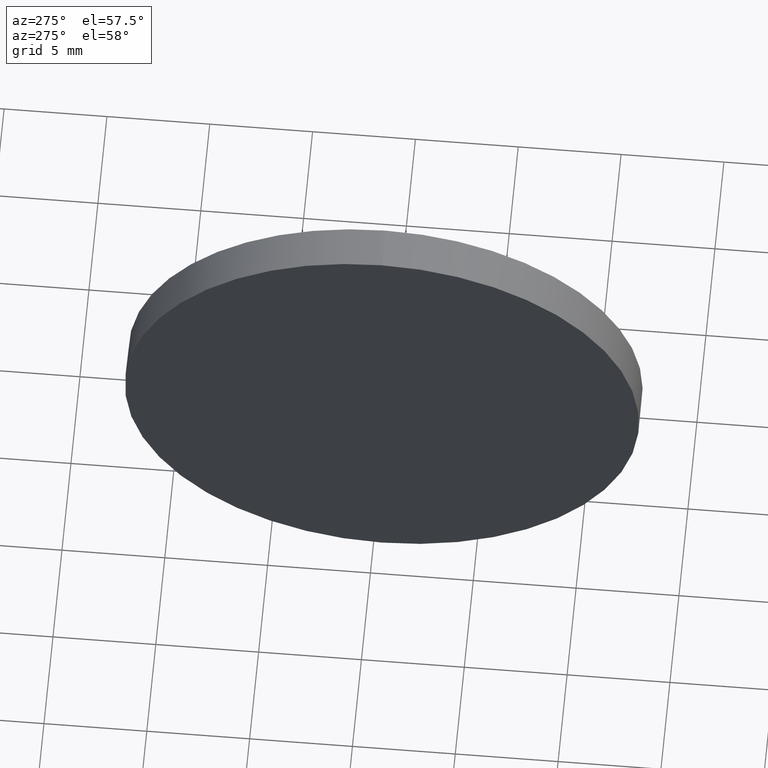
[diagram: clean part render]
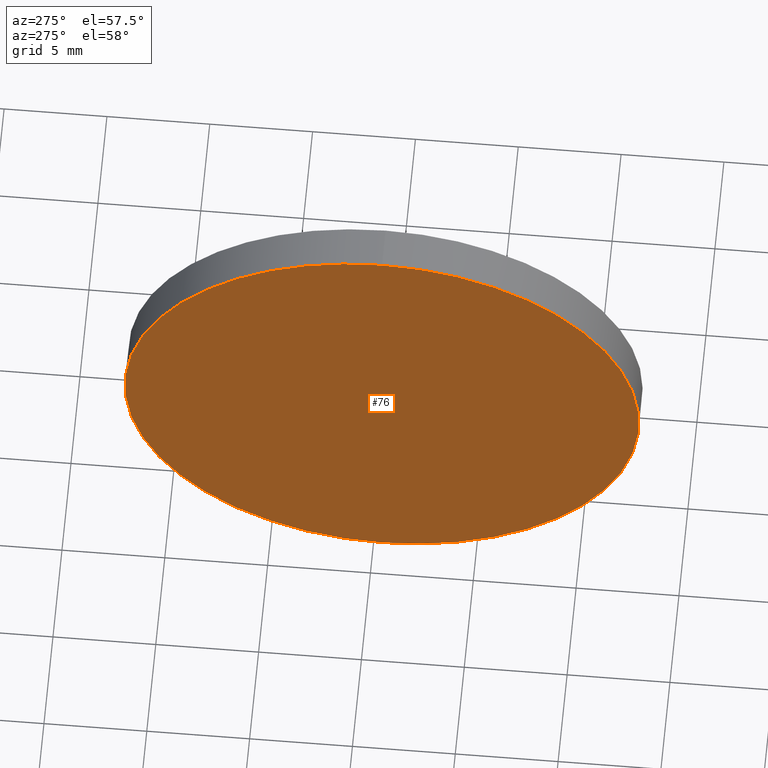
[diagram: same view with one face highlighted and labeled with its STEP entity id]
A machine part, auxiliary view. The second image highlights one B-rep face of the part: STEP entity #76.
In plain terms, the highlighted planar face has unit normal (1, 0, 0).
Its self-contained STEP definition (entity closure, byte-faithful):
#5 = AXIS2_PLACEMENT_3D ( 'NONE', #15, #78, #89 ) ;
#11 = ORIENTED_EDGE ( 'NONE', *, *, #152, .T. ) ;
#15 = CARTESIAN_POINT ( 'NONE',  ( 431.4454962620779400, 164.5680277828015500, 0.0000000000000000000 ) ) ;
#31 = DIRECTION ( 'NONE',  ( 0.0000000000000000000, 0.0000000000000000000, 1.000000000000000000 ) ) ;
#44 = FACE_OUTER_BOUND ( 'NONE', #62, .T. ) ;
#45 = AXIS2_PLACEMENT_3D ( 'NONE', #175, #51, #158 ) ;
#51 = DIRECTION ( 'NONE',  ( 1.000000000000000000, 0.0000000000000000000, 0.0000000000000000000 ) ) ;
#54 = EDGE_CURVE ( 'NONE', #174, #85, #141, .T. ) ;
#55 = CIRCLE ( 'NONE', #5, 12.50000000000001100 ) ;
#62 = EDGE_LOOP ( 'NONE', ( #11, #66 ) ) ;
#66 = ORIENTED_EDGE ( 'NONE', *, *, #54, .T. ) ;
#71 = AXIS2_PLACEMENT_3D ( 'NONE', #108, #139, #31 ) ;
#76 = ADVANCED_FACE ( 'NONE', ( #44 ), #126, .F. ) ;
#78 = DIRECTION ( 'NONE',  ( -1.000000000000000000, -0.0000000000000000000, -0.0000000000000000000 ) ) ;
#85 = VERTEX_POINT ( 'NONE', #176 ) ;
#89 = DIRECTION ( 'NONE',  ( 0.0000000000000000000, 0.0000000000000000000, 1.000000000000000000 ) ) ;
#98 = CARTESIAN_POINT ( 'NONE',  ( 431.4454962620779400, 164.5680277828015500, -12.50000000000001100 ) ) ;
#108 = CARTESIAN_POINT ( 'NONE',  ( 431.4454962620779400, 164.5680277828015500, 0.0000000000000000000 ) ) ;
#126 = PLANE ( 'NONE',  #45 ) ;
#139 = DIRECTION ( 'NONE',  ( -1.000000000000000000, -0.0000000000000000000, -0.0000000000000000000 ) ) ;
#141 = CIRCLE ( 'NONE', #71, 12.50000000000001100 ) ;
#152 = EDGE_CURVE ( 'NONE', #85, #174, #55, .T. ) ;
#158 = DIRECTION ( 'NONE',  ( 0.0000000000000000000, 0.0000000000000000000, -1.000000000000000000 ) ) ;
#174 = VERTEX_POINT ( 'NONE', #98 ) ;
#175 = CARTESIAN_POINT ( 'NONE',  ( 431.4454962620779400, 164.5680277828015500, 0.0000000000000000000 ) ) ;
#176 = CARTESIAN_POINT ( 'NONE',  ( 431.4454962620779400, 164.5680277828015500, 12.50000000000001100 ) ) ;